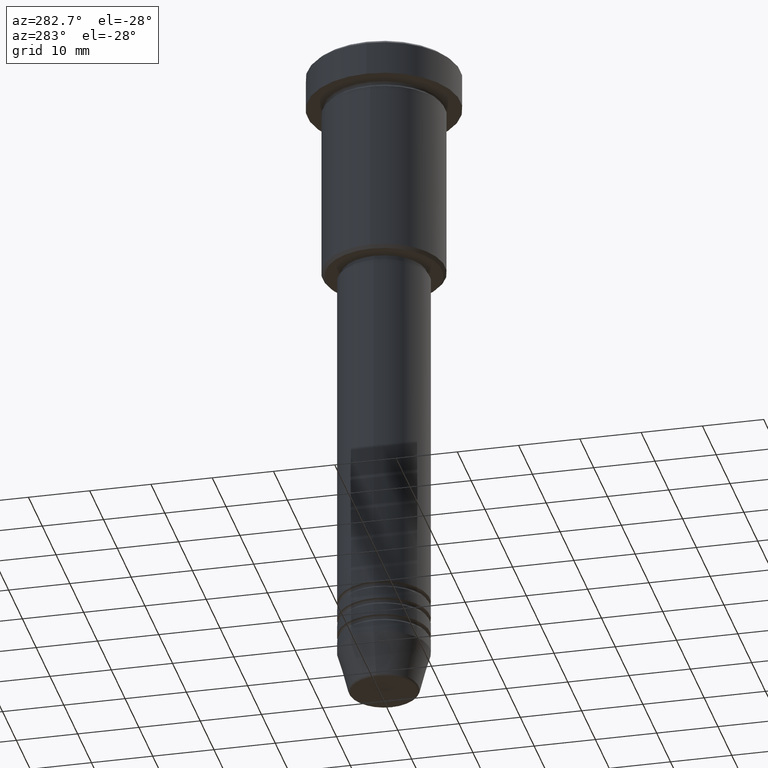
[diagram: clean part render]
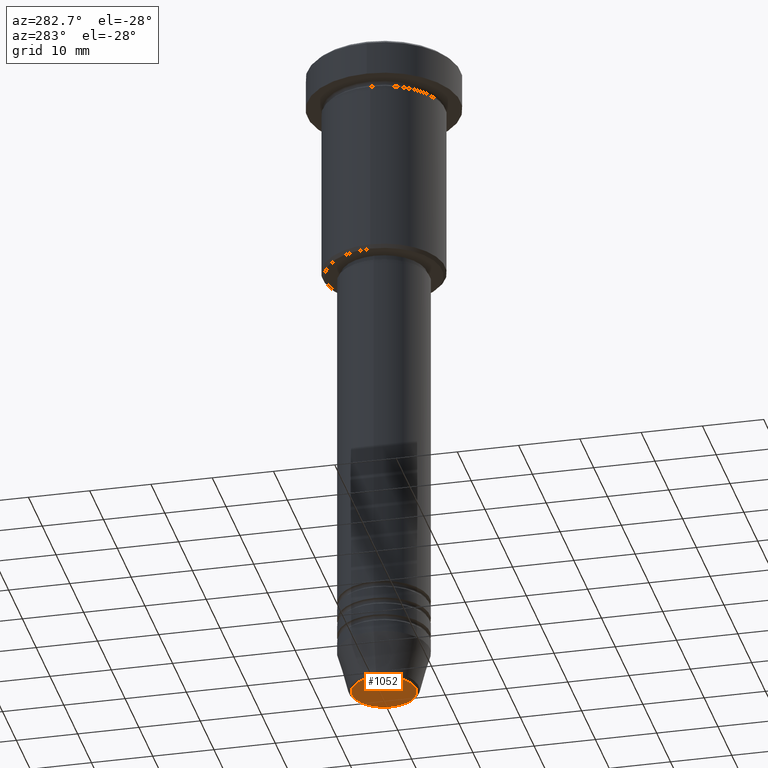
[diagram: same view with one face highlighted and labeled with its STEP entity id]
A machine part, auxiliary view. The second image highlights one B-rep face of the part: STEP entity #1052.
In plain terms, the highlighted planar face has unit normal (0, -0, 1).
Its self-contained STEP definition (entity closure, byte-faithful):
#6 = AXIS2_PLACEMENT_3D ( 'NONE', #115, #495, #53 ) ;
#23 = PLANE ( 'NONE',  #828 ) ;
#32 = CARTESIAN_POINT ( 'NONE',  ( 0.000000000000000000, 0.000000000000000000, -111.0000000000000000 ) ) ;
#53 = DIRECTION ( 'NONE',  ( 1.000000000000000000, 0.000000000000000000, 0.000000000000000000 ) ) ;
#108 = DIRECTION ( 'NONE',  ( 0.000000000000000000, 0.000000000000000000, -1.000000000000000000 ) ) ;
#115 = CARTESIAN_POINT ( 'NONE',  ( 0.000000000000000000, 0.000000000000000000, -111.0000000000000000 ) ) ;
#199 = ORIENTED_EDGE ( 'NONE', *, *, #447, .T. ) ;
#218 = ORIENTED_EDGE ( 'NONE', *, *, #788, .T. ) ;
#447 = EDGE_CURVE ( 'NONE', #776, #997, #764, .T. ) ;
#495 = DIRECTION ( 'NONE',  ( 0.000000000000000000, 0.000000000000000000, -1.000000000000000000 ) ) ;
#566 = DIRECTION ( 'NONE',  ( 0.000000000000000000, -0.000000000000000000, 1.000000000000000000 ) ) ;
#678 = CARTESIAN_POINT ( 'NONE',  ( 0.000000000000000000, 0.000000000000000000, -111.0000000000000000 ) ) ;
#736 = DIRECTION ( 'NONE',  ( 1.000000000000000000, 0.000000000000000000, 0.000000000000000000 ) ) ;
#753 = DIRECTION ( 'NONE',  ( 1.000000000000000000, 0.000000000000000000, 0.000000000000000000 ) ) ;
#757 = CARTESIAN_POINT ( 'NONE',  ( 5.240692158992658278, 0.000000000000000000, -111.0000000000000000 ) ) ;
#764 = CIRCLE ( 'NONE', #1172, 5.240692158992658278 ) ;
#776 = VERTEX_POINT ( 'NONE', #757 ) ;
#788 = EDGE_CURVE ( 'NONE', #997, #776, #904, .T. ) ;
#828 = AXIS2_PLACEMENT_3D ( 'NONE', #32, #566, #753 ) ;
#853 = CARTESIAN_POINT ( 'NONE',  ( -5.240692158992658278, 6.713726370671658459E-16, -111.0000000000000000 ) ) ;
#856 = EDGE_LOOP ( 'NONE', ( #199, #218 ) ) ;
#904 = CIRCLE ( 'NONE', #6, 5.240692158992658278 ) ;
#997 = VERTEX_POINT ( 'NONE', #853 ) ;
#1025 = FACE_OUTER_BOUND ( 'NONE', #856, .T. ) ;
#1052 = ADVANCED_FACE ( 'NONE', ( #1025 ), #23, .F. ) ;
#1172 = AXIS2_PLACEMENT_3D ( 'NONE', #678, #108, #736 ) ;